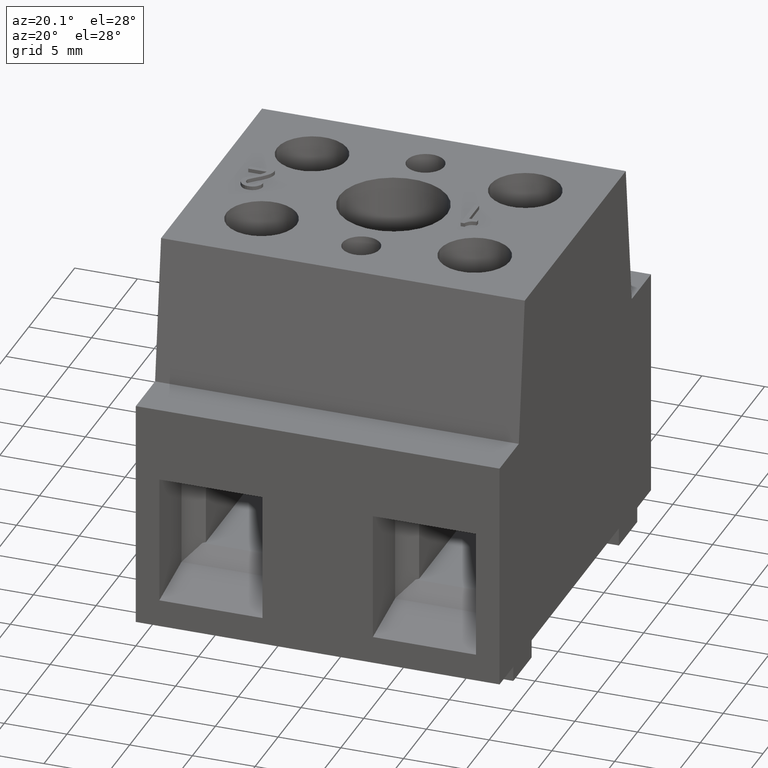
[diagram: clean part render]
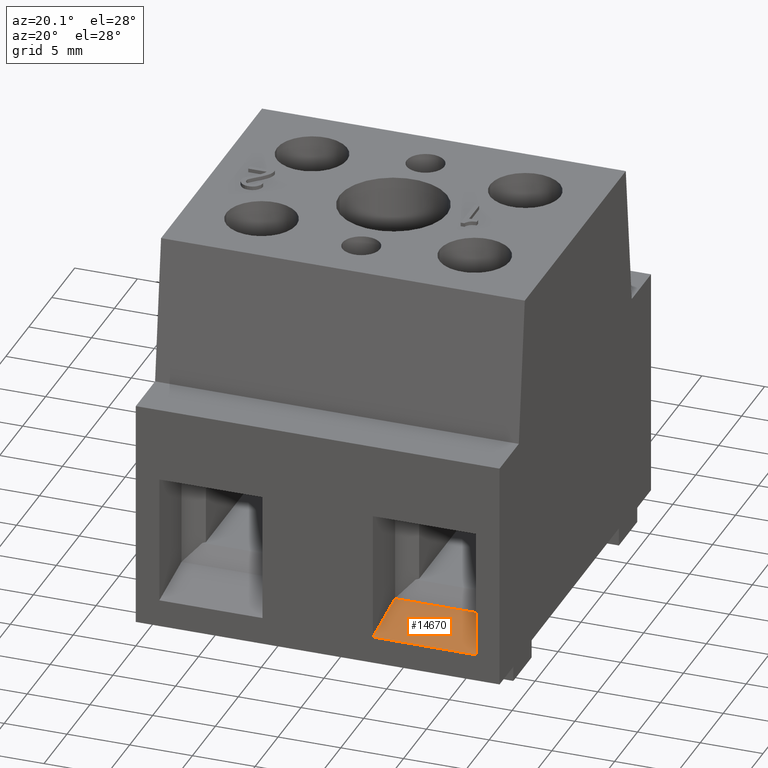
[diagram: same view with one face highlighted and labeled with its STEP entity id]
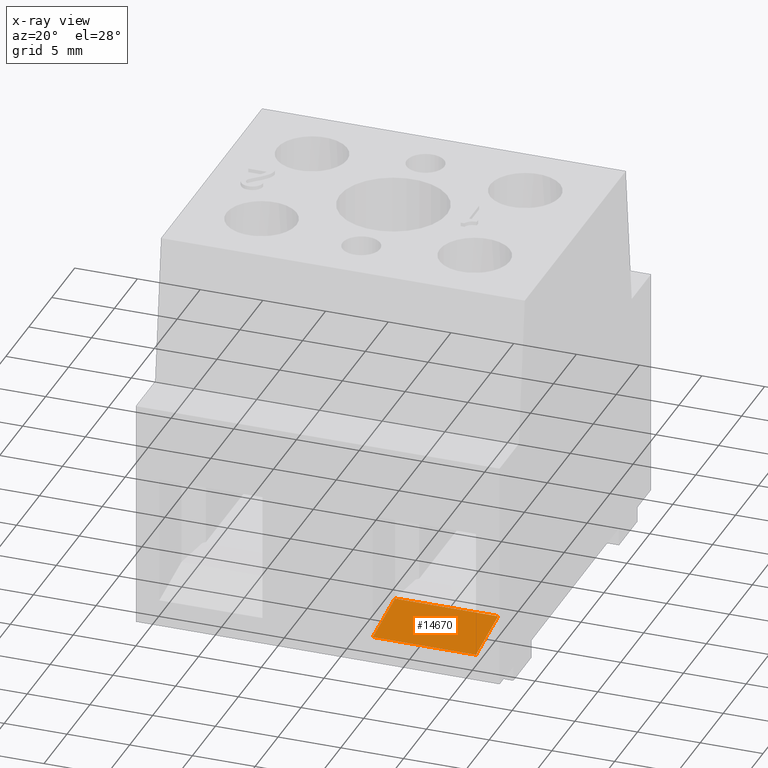
[diagram: x-ray of the same camera — body ghosted, the highlighted face saturated]
A machine part, auxiliary view. The second image highlights one B-rep face of the part: STEP entity #14670.
The next image is the same camera in x-ray: the body ghosted, the highlighted face saturated — about 0% of this face is hidden behind the body in this view.
In plain terms, the highlighted planar face has unit normal (0, 0.1736, -0.9848).
Its self-contained STEP definition (entity closure, byte-faithful):
#10990=CARTESIAN_POINT('',(43.9963182031142,-16.0908790304453,
1.87500000000003));
#11000=VERTEX_POINT('',#10990);
#13100=CARTESIAN_POINT('',(43.9963182031141,-16.0908790304453,
1.77635683940025E-15));
#13110=DIRECTION('',(0.,0.,1.));
#13120=VECTOR('',#13110,1.);
#13130=LINE('',#13100,#13120);
#13140=CARTESIAN_POINT('',(43.9963182031142,-16.0908790304453,10.1));
#13150=VERTEX_POINT('',#13140);
#13160=EDGE_CURVE('',#11000,#13150,#13130,.T.);
#13470=CARTESIAN_POINT('',(46.0526511092175,-4.42883560497982,10.1));
#13480=DIRECTION('',(-0.17364817766693,-0.984807753012208,0.));
#13490=VECTOR('',#13480,1.);
#13500=LINE('',#13470,#13490);
#13510=CARTESIAN_POINT('',(43.1455405211958,-20.9158790304453,10.1));
#13520=VERTEX_POINT('',#13510);
#13530=EDGE_CURVE('',#13150,#13520,#13500,.T.);
#14310=CARTESIAN_POINT('',(43.1455405211958,-20.9158790304453,1.875));
#14320=VERTEX_POINT('',#14310);
#14350=CARTESIAN_POINT('',(46.0526511092175,-4.42883560497982,1.875));
#14360=DIRECTION('',(0.17364817766693,0.984807753012208,0.));
#14370=VECTOR('',#14360,1.);
#14380=LINE('',#14350,#14370);
#14390=EDGE_CURVE('',#14320,#11000,#14380,.T.);
#14510=CARTESIAN_POINT('',(43.0821786438607,-21.2752220934326,
1.99999999999999));
#14520=DIRECTION('',(-0.984807753012208,0.17364817766693,0.));
#14530=DIRECTION('',(-0.17364817766693,-0.984807753012208,0.));
#14540=AXIS2_PLACEMENT_3D('',#14510,#14520,#14530);
#14550=PLANE('',#14540);
#14560=ORIENTED_EDGE('',*,*,#13160,.T.);
#14570=ORIENTED_EDGE('',*,*,#14390,.T.);
#14580=CARTESIAN_POINT('',(43.1455405211958,-20.9158790304453,
1.77635683940025E-15));
#14590=DIRECTION('',(0.,0.,1.));
#14600=VECTOR('',#14590,1.);
#14610=LINE('',#14580,#14600);
#14620=EDGE_CURVE('',#14320,#13520,#14610,.T.);
#14630=ORIENTED_EDGE('',*,*,#14620,.F.);
#14640=ORIENTED_EDGE('',*,*,#13530,.T.);
#14650=EDGE_LOOP('',(#14640,#14630,#14570,#14560));
#14660=FACE_OUTER_BOUND('',#14650,.T.);
#14670=ADVANCED_FACE('',(#14660),#14550,.F.);